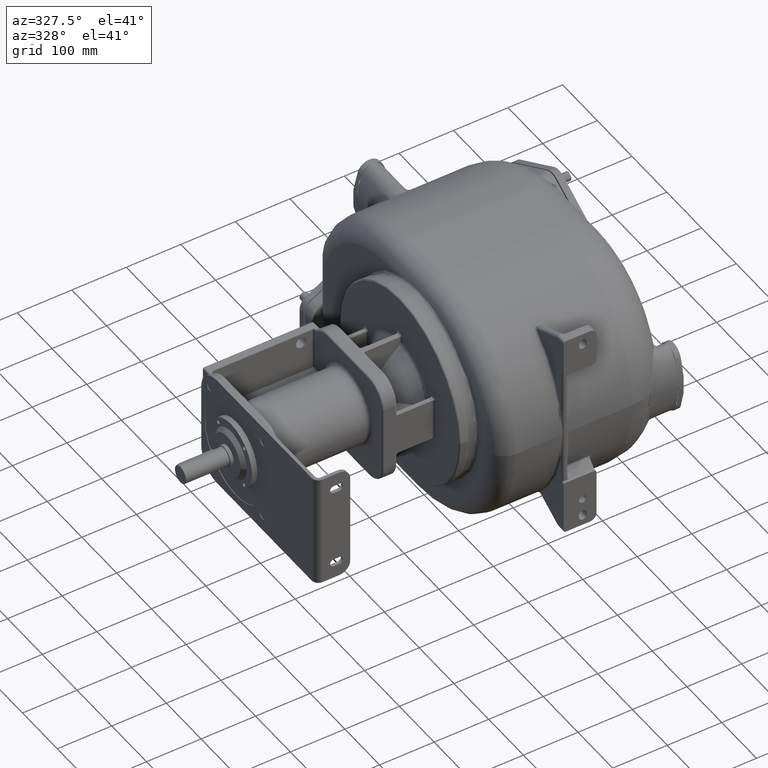
[diagram: clean part render]
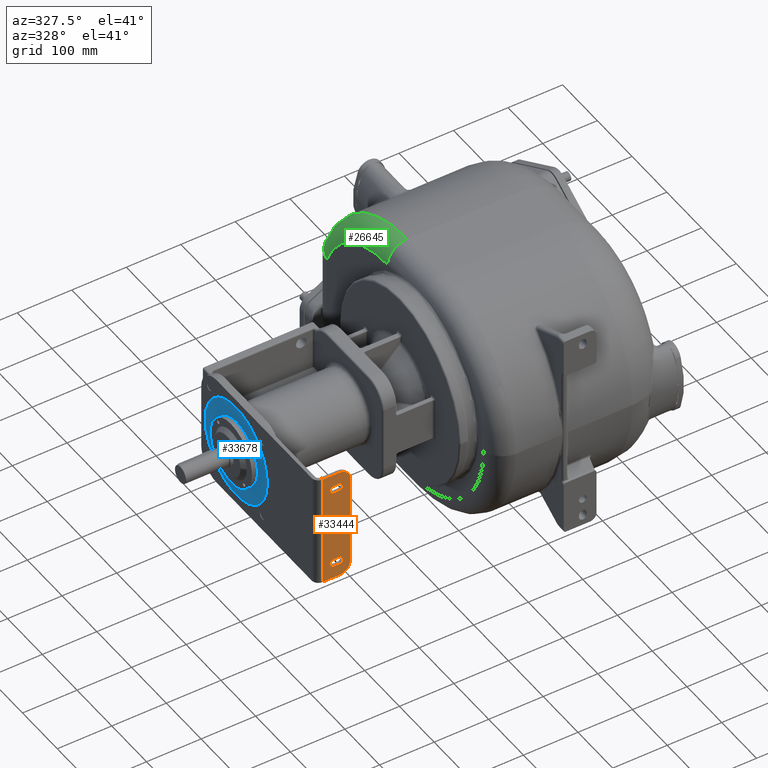
[diagram: same view with three faces highlighted in distinct colors, each labeled with its STEP entity id]
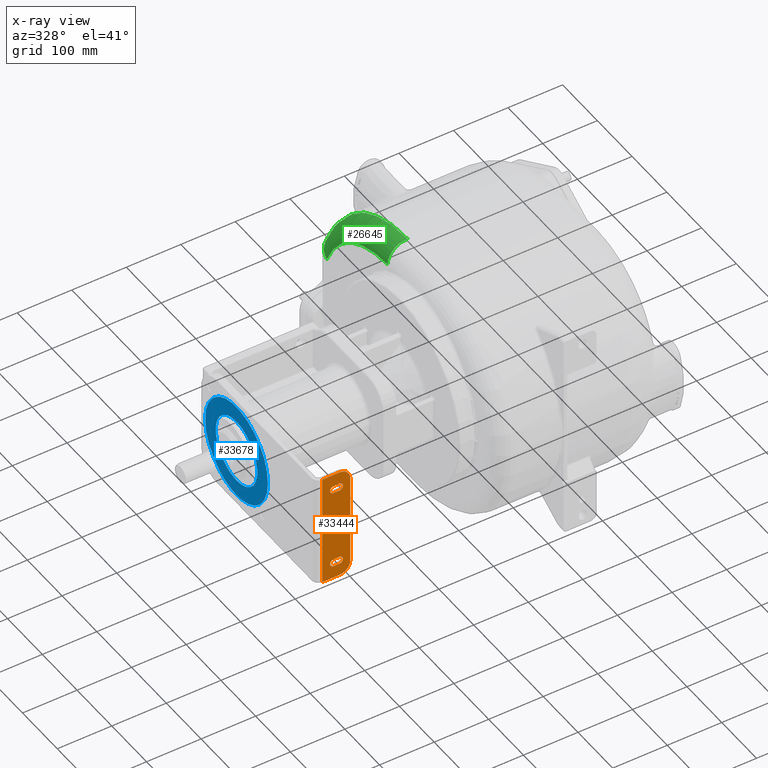
[diagram: x-ray of the same camera — body ghosted, the three highlighted faces saturated]
A machine part, auxiliary view with three faces highlighted in distinct colors.
The next image is the same camera in x-ray (body ghosted, the three faces saturated) — at least one of them is partly hidden behind the body in this view.
Their STEP definitions:

[orange] entity #33444 — the highlighted planar face has unit normal (0, 1, 0).
#10127=DIRECTION('',(0.E0,0.E0,1.E0));
#10128=VECTOR('',#10127,2.1E2);
#10129=CARTESIAN_POINT('',(-4.775E2,2.823801241053E-14,-1.05E2));
#10130=LINE('',#10129,#10128);
#10145=CARTESIAN_POINT('',(-4.465E2,2.131628207280E-14,8.5E1));
#10146=DIRECTION('',(0.E0,-1.E0,0.E0));
#10147=DIRECTION('',(1.E0,0.E0,0.E0));
#10148=AXIS2_PLACEMENT_3D('',#10145,#10146,#10147);
#10150=DIRECTION('',(0.E0,0.E0,-1.E0));
#10151=VECTOR('',#10150,1.7E2);
#10152=CARTESIAN_POINT('',(-4.265E2,2.713583029130E-14,8.5E1));
#10153=LINE('',#10152,#10151);
#10154=CARTESIAN_POINT('',(-4.465E2,2.131628207280E-14,-8.5E1));
#10155=DIRECTION('',(0.E0,-1.E0,0.E0));
#10156=DIRECTION('',(0.E0,0.E0,-1.E0));
#10157=AXIS2_PLACEMENT_3D('',#10154,#10155,#10156);
#10159=DIRECTION('',(-1.E0,0.E0,0.E0));
#10160=VECTOR('',#10159,3.1E1);
#10161=CARTESIAN_POINT('',(-4.465E2,2.754404589102E-14,-1.05E2));
#10162=LINE('',#10161,#10160);
#10163=DIRECTION('',(1.E0,0.E0,0.E0));
#10164=VECTOR('',#10163,3.1E1);
#10165=CARTESIAN_POINT('',(-4.775E2,2.823801241053E-14,1.05E2));
#10166=LINE('',#10165,#10164);
#10167=CARTESIAN_POINT('',(-4.565E2,2.842170943040E-14,7.5E1));
#10168=DIRECTION('',(0.E0,1.E0,0.E0));
#10169=DIRECTION('',(0.E0,0.E0,-1.E0));
#10170=AXIS2_PLACEMENT_3D('',#10167,#10168,#10169);
#10172=DIRECTION('',(1.E0,0.E0,0.E0));
#10173=VECTOR('',#10172,1.E1);
#10174=CARTESIAN_POINT('',(-4.565E2,2.774815369087E-14,6.8E1));
#10175=LINE('',#10174,#10173);
#10176=CARTESIAN_POINT('',(-4.465E2,2.842170943040E-14,7.5E1));
#10177=DIRECTION('',(0.E0,1.E0,0.E0));
#10178=DIRECTION('',(0.E0,0.E0,1.E0));
#10179=AXIS2_PLACEMENT_3D('',#10176,#10177,#10178);
#10181=DIRECTION('',(-1.E0,0.E0,0.E0));
#10182=VECTOR('',#10181,1.E1);
#10183=CARTESIAN_POINT('',(-4.465E2,2.754404589102E-14,8.2E1));
#10184=LINE('',#10183,#10182);
#10185=DIRECTION('',(1.E0,0.E0,0.E0));
#10186=VECTOR('',#10185,1.E1);
#10187=CARTESIAN_POINT('',(-4.565E2,2.774815369087E-14,-8.2E1));
#10188=LINE('',#10187,#10186);
#10189=CARTESIAN_POINT('',(-4.465E2,2.842170943040E-14,-7.5E1));
#10190=DIRECTION('',(0.E0,1.E0,0.E0));
#10191=DIRECTION('',(0.E0,0.E0,1.E0));
#10192=AXIS2_PLACEMENT_3D('',#10189,#10190,#10191);
#10194=DIRECTION('',(-1.E0,0.E0,0.E0));
#10195=VECTOR('',#10194,1.E1);
#10196=CARTESIAN_POINT('',(-4.465E2,2.754404589102E-14,-6.8E1));
#10197=LINE('',#10196,#10195);
#10198=CARTESIAN_POINT('',(-4.565E2,2.842170943040E-14,-7.5E1));
#10199=DIRECTION('',(0.E0,1.E0,0.E0));
#10200=DIRECTION('',(0.E0,0.E0,-1.E0));
#10201=AXIS2_PLACEMENT_3D('',#10198,#10199,#10200);
#21392=CARTESIAN_POINT('',(-4.775E2,2.823801241053E-14,-1.05E2));
#21393=CARTESIAN_POINT('',(-4.775E2,2.823801241053E-14,1.05E2));
#21394=VERTEX_POINT('',#21392);
#21395=VERTEX_POINT('',#21393);
#21420=CARTESIAN_POINT('',(-4.565E2,2.774815369087E-14,-8.2E1));
#21421=CARTESIAN_POINT('',(-4.465E2,2.754404589102E-14,-8.2E1));
#21422=VERTEX_POINT('',#21420);
#21423=VERTEX_POINT('',#21421);
#21424=CARTESIAN_POINT('',(-4.465E2,2.842170943040E-14,-6.8E1));
#21425=VERTEX_POINT('',#21424);
#21426=CARTESIAN_POINT('',(-4.565E2,2.774815369087E-14,-6.8E1));
#21427=VERTEX_POINT('',#21426);
#21428=CARTESIAN_POINT('',(-4.265E2,2.131628207280E-14,8.5E1));
#21429=CARTESIAN_POINT('',(-4.465E2,2.131628207280E-14,1.05E2));
#21430=VERTEX_POINT('',#21428);
#21431=VERTEX_POINT('',#21429);
#21436=CARTESIAN_POINT('',(-4.465E2,2.131628207280E-14,-1.05E2));
#21437=CARTESIAN_POINT('',(-4.265E2,2.131628207280E-14,-8.5E1));
#21438=VERTEX_POINT('',#21436);
#21439=VERTEX_POINT('',#21437);
#21472=CARTESIAN_POINT('',(-4.565E2,2.842170943040E-14,6.8E1));
#21473=CARTESIAN_POINT('',(-4.565E2,2.842170943040E-14,8.2E1));
#21474=VERTEX_POINT('',#21472);
#21475=VERTEX_POINT('',#21473);
#21476=CARTESIAN_POINT('',(-4.465E2,2.754404589102E-14,6.8E1));
#21477=VERTEX_POINT('',#21476);
#21478=CARTESIAN_POINT('',(-4.465E2,2.842170943040E-14,8.2E1));
#21479=VERTEX_POINT('',#21478);
#33406=CARTESIAN_POINT('',(-4.895E2,2.842170943040E-14,1.05E2));
#33407=DIRECTION('',(0.E0,1.E0,0.E0));
#33408=DIRECTION('',(0.E0,0.E0,1.E0));
#33409=AXIS2_PLACEMENT_3D('',#33406,#33407,#33408);
#33410=PLANE('',#33409);
#33412=ORIENTED_EDGE('',*,*,#33411,.F.);
#33414=ORIENTED_EDGE('',*,*,#33413,.T.);
#33416=ORIENTED_EDGE('',*,*,#33415,.F.);
#33418=ORIENTED_EDGE('',*,*,#33417,.T.);
#33419=ORIENTED_EDGE('',*,*,#33396,.T.);
#33421=ORIENTED_EDGE('',*,*,#33420,.T.);
#33422=EDGE_LOOP('',(#33412,#33414,#33416,#33418,#33419,#33421));
#33423=FACE_OUTER_BOUND('',#33422,.F.);
#33425=ORIENTED_EDGE('',*,*,#33424,.F.);
#33427=ORIENTED_EDGE('',*,*,#33426,.T.);
#33429=ORIENTED_EDGE('',*,*,#33428,.F.);
#33431=ORIENTED_EDGE('',*,*,#33430,.T.);
#33432=EDGE_LOOP('',(#33425,#33427,#33429,#33431));
#33433=FACE_BOUND('',#33432,.F.);
#33435=ORIENTED_EDGE('',*,*,#33434,.T.);
#33437=ORIENTED_EDGE('',*,*,#33436,.F.);
#33439=ORIENTED_EDGE('',*,*,#33438,.T.);
#33441=ORIENTED_EDGE('',*,*,#33440,.F.);
#33442=EDGE_LOOP('',(#33435,#33437,#33439,#33441));
#33443=FACE_BOUND('',#33442,.F.);
#33444=ADVANCED_FACE('',(#33423,#33433,#33443),#33410,.F.);
#10149=CIRCLE('',#10148,2.E1);
#10158=CIRCLE('',#10157,2.E1);
#10171=CIRCLE('',#10170,7.E0);
#10180=CIRCLE('',#10179,7.E0);
#10193=CIRCLE('',#10192,7.E0);
#10202=CIRCLE('',#10201,7.E0);
#33396=EDGE_CURVE('',#21394,#21395,#10130,.T.);
#33411=EDGE_CURVE('',#21430,#21431,#10149,.T.);
#33413=EDGE_CURVE('',#21430,#21439,#10153,.T.);
#33415=EDGE_CURVE('',#21438,#21439,#10158,.T.);
#33417=EDGE_CURVE('',#21438,#21394,#10162,.T.);
#33420=EDGE_CURVE('',#21395,#21431,#10166,.T.);
#33424=EDGE_CURVE('',#21474,#21475,#10171,.T.);
#33426=EDGE_CURVE('',#21474,#21477,#10175,.T.);
#33428=EDGE_CURVE('',#21479,#21477,#10180,.T.);
#33430=EDGE_CURVE('',#21479,#21475,#10184,.T.);
#33434=EDGE_CURVE('',#21422,#21423,#10188,.T.);
#33436=EDGE_CURVE('',#21425,#21423,#10193,.T.);
#33438=EDGE_CURVE('',#21425,#21427,#10197,.T.);
#33440=EDGE_CURVE('',#21422,#21427,#10202,.T.);

[blue] entity #33678 — the highlighted planar face has unit normal (-1, 0, 0).
#10387=CARTESIAN_POINT('',(-4.885E2,2.3E2,0.E0));
#10388=DIRECTION('',(-1.E0,0.E0,0.E0));
#10389=DIRECTION('',(0.E0,-1.E0,0.E0));
#10390=AXIS2_PLACEMENT_3D('',#10387,#10388,#10389);
#10392=CARTESIAN_POINT('',(-4.885E2,2.3E2,0.E0));
#10393=DIRECTION('',(-1.E0,0.E0,0.E0));
#10394=DIRECTION('',(0.E0,1.E0,0.E0));
#10395=AXIS2_PLACEMENT_3D('',#10392,#10393,#10394);
#10397=CARTESIAN_POINT('',(-4.885E2,2.3E2,0.E0));
#10398=DIRECTION('',(-1.E0,0.E0,0.E0));
#10399=DIRECTION('',(0.E0,0.E0,-1.E0));
#10400=AXIS2_PLACEMENT_3D('',#10397,#10398,#10399);
#10402=CARTESIAN_POINT('',(-4.885E2,2.3E2,0.E0));
#10403=DIRECTION('',(-1.E0,0.E0,0.E0));
#10404=DIRECTION('',(0.E0,0.E0,1.E0));
#10405=AXIS2_PLACEMENT_3D('',#10402,#10403,#10404);
#21341=CARTESIAN_POINT('',(-4.885E2,2.3E2,-6.E1));
#21342=CARTESIAN_POINT('',(-4.885E2,2.3E2,6.E1));
#21343=VERTEX_POINT('',#21341);
#21344=VERTEX_POINT('',#21342);
#21480=CARTESIAN_POINT('',(-4.885E2,1.398E2,-1.001562896145E-14));
#21481=CARTESIAN_POINT('',(-4.885E2,3.202E2,3.232871364191E-14));
#21482=VERTEX_POINT('',#21480);
#21483=VERTEX_POINT('',#21481);
#33662=CARTESIAN_POINT('',(-4.885E2,2.3E2,0.E0));
#33663=DIRECTION('',(-1.E0,0.E0,0.E0));
#33664=DIRECTION('',(0.E0,-1.E0,0.E0));
#33665=AXIS2_PLACEMENT_3D('',#33662,#33663,#33664);
#33666=PLANE('',#33665);
#33667=ORIENTED_EDGE('',*,*,#33652,.F.);
#33669=ORIENTED_EDGE('',*,*,#33668,.F.);
#33670=EDGE_LOOP('',(#33667,#33669));
#33671=FACE_OUTER_BOUND('',#33670,.F.);
#33673=ORIENTED_EDGE('',*,*,#33672,.T.);
#33675=ORIENTED_EDGE('',*,*,#33674,.T.);
#33676=EDGE_LOOP('',(#33673,#33675));
#33677=FACE_BOUND('',#33676,.F.);
#33678=ADVANCED_FACE('',(#33671,#33677),#33666,.T.);
#10391=CIRCLE('',#10390,9.02E1);
#10396=CIRCLE('',#10395,9.02E1);
#10401=CIRCLE('',#10400,6.E1);
#10406=CIRCLE('',#10405,6.E1);
#33652=EDGE_CURVE('',#21482,#21483,#10391,.T.);
#33668=EDGE_CURVE('',#21483,#21482,#10396,.T.);
#33672=EDGE_CURVE('',#21343,#21344,#10401,.T.);
#33674=EDGE_CURVE('',#21344,#21343,#10406,.T.);

[green] entity #26645 — the highlighted toroidal blend (fillet) surface has major radius 189 mm and minor (blend) radius 36 mm.
#5619=CARTESIAN_POINT('',(-1.2E2,3.17E2,-2.6E1));
#5620=DIRECTION('',(-1.E0,0.E0,0.E0));
#5621=DIRECTION('',(0.E0,0.E0,1.E0));
#5622=AXIS2_PLACEMENT_3D('',#5619,#5620,#5621);
#5668=CARTESIAN_POINT('',(-1.2E2,4.917470542027E2,4.600324331229E1));
#5669=DIRECTION('',(0.E0,3.809695413349E-1,-9.245875883739E-1));
#5670=DIRECTION('',(-1.E0,0.E0,0.E0));
#5671=AXIS2_PLACEMENT_3D('',#5668,#5669,#5670);
#5760=CARTESIAN_POINT('',(-1.56E2,3.17E2,-2.6E1));
#5761=DIRECTION('',(-1.E0,0.E0,0.E0));
#5762=DIRECTION('',(0.E0,0.E0,1.E0));
#5763=AXIS2_PLACEMENT_3D('',#5760,#5761,#5762);
#5953=CARTESIAN_POINT('',(-1.2E2,3.17E2,1.63E2));
#5954=DIRECTION('',(0.E0,1.E0,0.E0));
#5955=DIRECTION('',(-1.E0,0.E0,0.E0));
#5956=AXIS2_PLACEMENT_3D('',#5953,#5954,#5955);
#19103=CARTESIAN_POINT('',(-1.2E2,3.169999999998E2,1.99E2));
#19105=VERTEX_POINT('',#19103);
#19195=CARTESIAN_POINT('',(-1.56E2,3.17E2,1.63E2));
#19196=CARTESIAN_POINT('',(-1.56E2,4.917470542027E2,4.600324331229E1));
#19197=VERTEX_POINT('',#19195);
#19198=VERTEX_POINT('',#19196);
#19199=CARTESIAN_POINT('',(-1.2E2,5.250322073841E2,5.971814680035E1));
#19200=VERTEX_POINT('',#19199);
#26634=CARTESIAN_POINT('',(-1.2E2,3.17E2,-2.6E1));
#26635=DIRECTION('',(-1.E0,0.E0,0.E0));
#26636=DIRECTION('',(0.E0,-5.284603507593E-3,9.999860363854E-1));
#26637=AXIS2_PLACEMENT_3D('',#26634,#26635,#26636);
#26638=TOROIDAL_SURFACE('',#26637,1.89E2,3.6E1);
#26639=ORIENTED_EDGE('',*,*,#26446,.T.);
#26640=ORIENTED_EDGE('',*,*,#26402,.T.);
#26641=ORIENTED_EDGE('',*,*,#26148,.F.);
#26642=ORIENTED_EDGE('',*,*,#26582,.F.);
#26643=EDGE_LOOP('',(#26639,#26640,#26641,#26642));
#26644=FACE_OUTER_BOUND('',#26643,.F.);
#26645=ADVANCED_FACE('',(#26644),#26638,.T.);
#5623=CIRCLE('',#5622,2.25E2);
#5672=CIRCLE('',#5671,3.6E1);
#5764=CIRCLE('',#5763,1.89E2);
#5957=CIRCLE('',#5956,3.6E1);
#26148=EDGE_CURVE('',#19105,#19200,#5623,.T.);
#26402=EDGE_CURVE('',#19198,#19200,#5672,.T.);
#26446=EDGE_CURVE('',#19197,#19198,#5764,.T.);
#26582=EDGE_CURVE('',#19197,#19105,#5957,.T.);